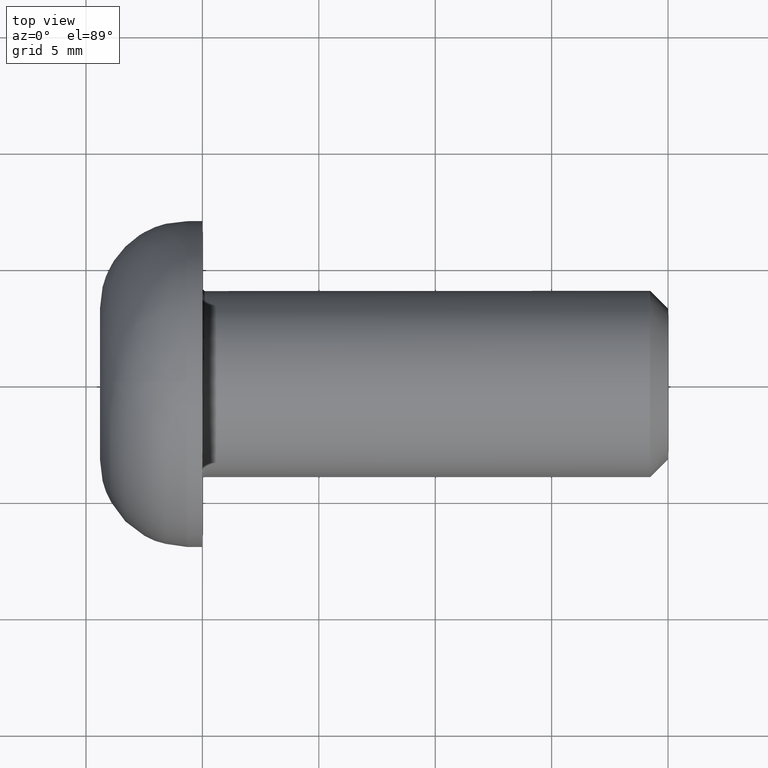
[diagram: clean part render]
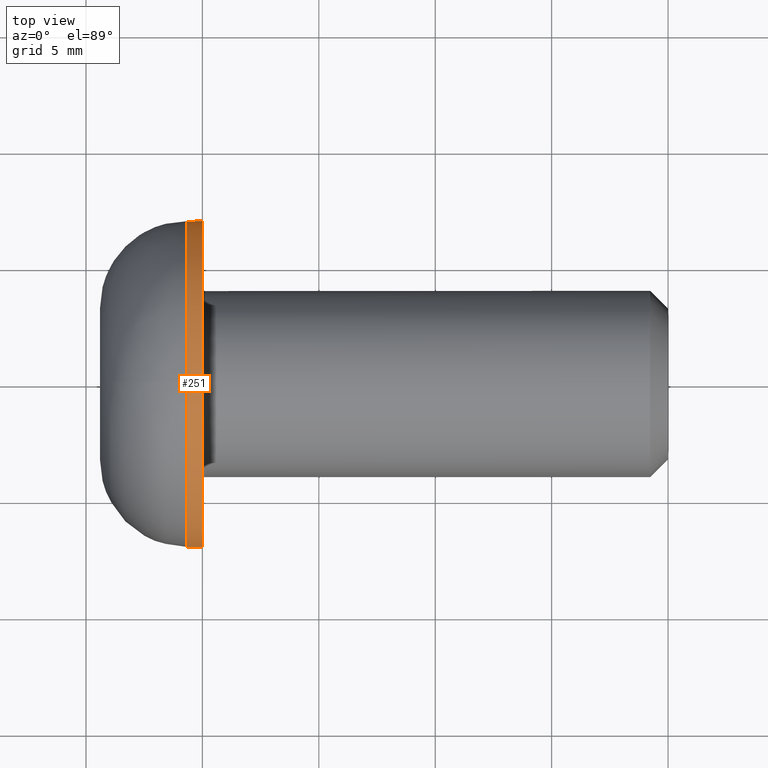
[diagram: same view with one face highlighted and labeled with its STEP entity id]
A machine part, top view. The second image highlights one B-rep face of the part: STEP entity #251.
In plain terms, the highlighted cylindrical surface (bore or boss wall) has radius 7 mm, axis along (1, 0, 0).
Its self-contained STEP definition (entity closure, byte-faithful):
#44=LINE('',#449,#60);
#60=VECTOR('',#356,7.);
#69=CYLINDRICAL_SURFACE('',#300,7.);
#77=FACE_OUTER_BOUND('',#94,.T.);
#94=EDGE_LOOP('',(#204,#205,#206,#207,#208));
#108=CIRCLE('',#291,7.);
#110=CIRCLE('',#295,7.);
#111=CIRCLE('',#296,7.);
#119=VERTEX_POINT('',#394);
#121=VERTEX_POINT('',#428);
#122=VERTEX_POINT('',#429);
#145=EDGE_CURVE('',#119,#119,#108,.T.);
#148=EDGE_CURVE('',#121,#122,#110,.T.);
#149=EDGE_CURVE('',#122,#121,#111,.T.);
#158=EDGE_CURVE('',#119,#122,#44,.T.);
#204=ORIENTED_EDGE('',*,*,#145,.F.);
#205=ORIENTED_EDGE('',*,*,#158,.T.);
#206=ORIENTED_EDGE('',*,*,#148,.F.);
#207=ORIENTED_EDGE('',*,*,#149,.F.);
#208=ORIENTED_EDGE('',*,*,#158,.F.);
#251=ADVANCED_FACE('',(#77),#69,.T.);
#291=AXIS2_PLACEMENT_3D('',#395,#329,#330);
#295=AXIS2_PLACEMENT_3D('',#430,#338,#339);
#296=AXIS2_PLACEMENT_3D('',#431,#340,#341);
#300=AXIS2_PLACEMENT_3D('',#448,#354,#355);
#329=DIRECTION('center_axis',(1.,5.98373334115326E-18,0.));
#330=DIRECTION('ref_axis',(0.,1.,0.));
#338=DIRECTION('center_axis',(-1.,-5.98373334115326E-18,0.));
#339=DIRECTION('ref_axis',(0.,-1.,1.22464679914735E-16));
#340=DIRECTION('center_axis',(-1.,-5.98373334115326E-18,0.));
#341=DIRECTION('ref_axis',(0.,-1.,1.22464679914735E-16));
#354=DIRECTION('center_axis',(1.,5.98373334115326E-18,0.));
#355=DIRECTION('ref_axis',(0.,1.,0.));
#356=DIRECTION('',(-1.,-5.98373334115326E-18,0.));
#394=CARTESIAN_POINT('',(2.22044604925031E-15,-7.,-8.57252759403147E-16));
#395=CARTESIAN_POINT('Origin',(2.22044604925031E-15,-1.19674666823065E-16,
0.));
#428=CARTESIAN_POINT('',(-0.659999999999995,-9.80876690231374E-16,7.));
#429=CARTESIAN_POINT('',(-0.659999999999995,-7.,-8.57252759403147E-16));
#430=CARTESIAN_POINT('Origin',(-0.659999999999995,-1.23623930828226E-16,
0.));
#431=CARTESIAN_POINT('Origin',(-0.659999999999995,-1.23623930828226E-16,
0.));
#448=CARTESIAN_POINT('Origin',(-2.2,-1.32838880173602E-16,0.));
#449=CARTESIAN_POINT('',(-2.2,-7.,-8.57252759403147E-16));